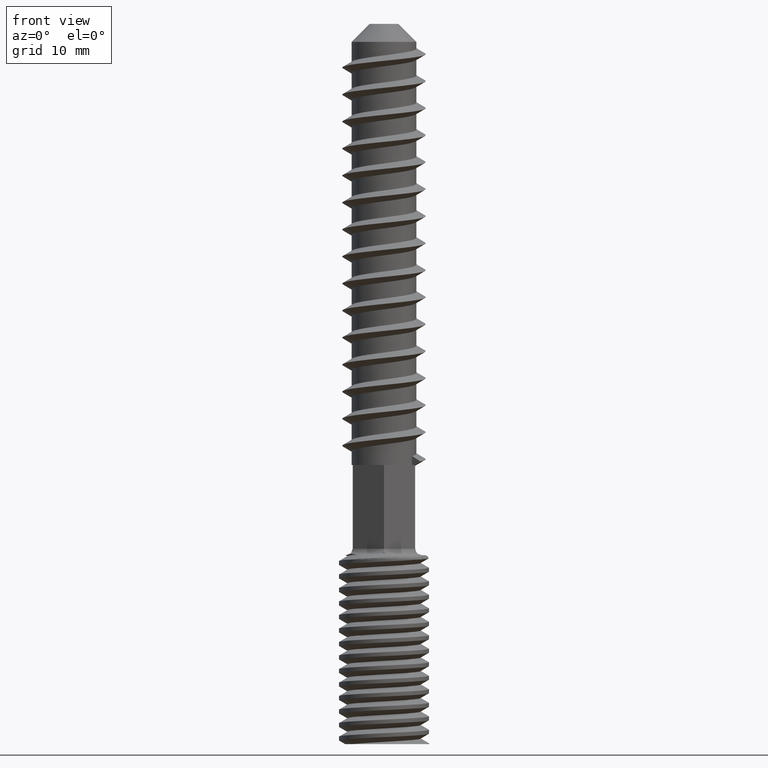
[diagram: clean part render]
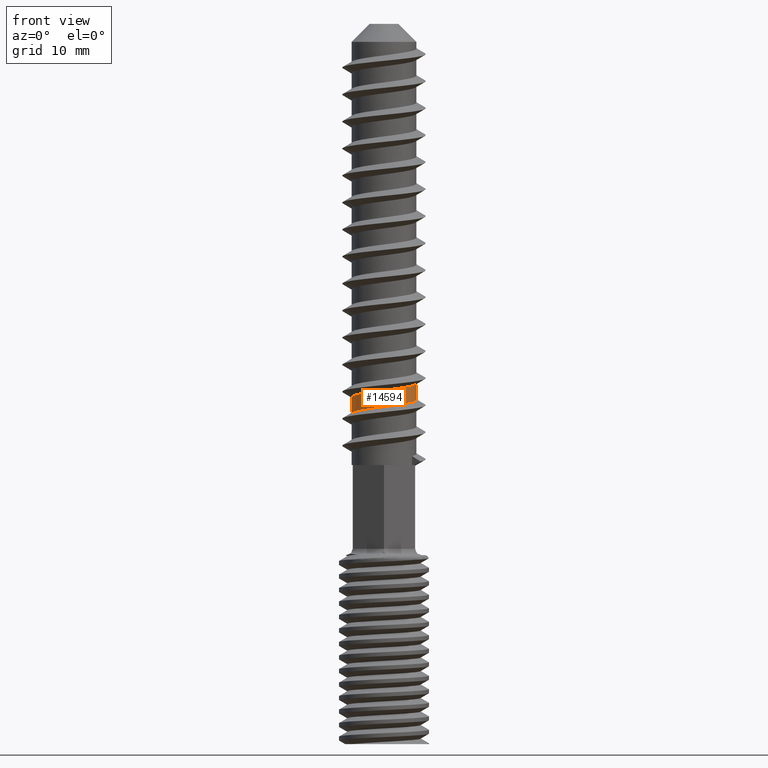
[diagram: same view with one face highlighted and labeled with its STEP entity id]
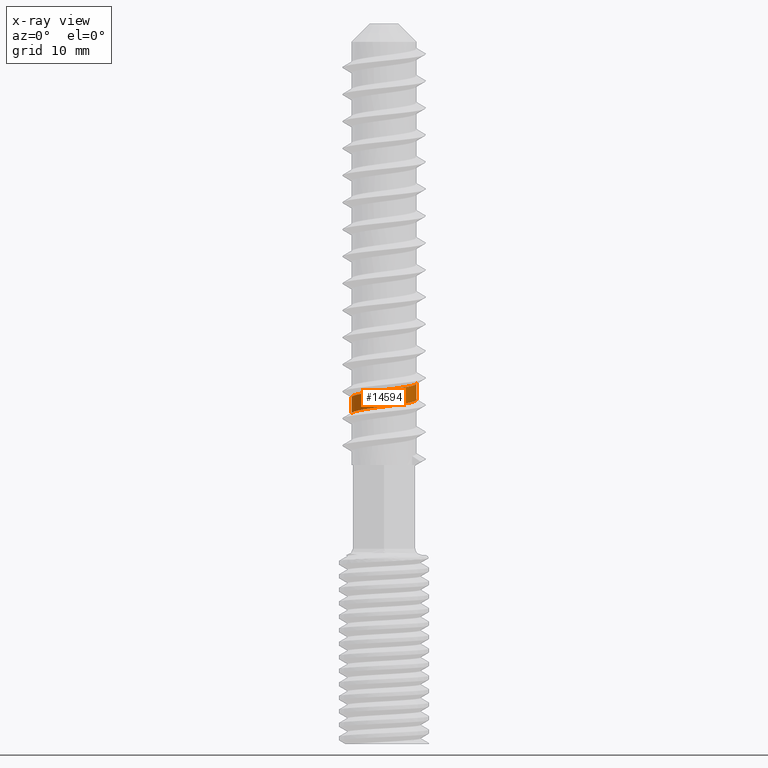
[diagram: x-ray of the same camera — body ghosted, the highlighted face saturated]
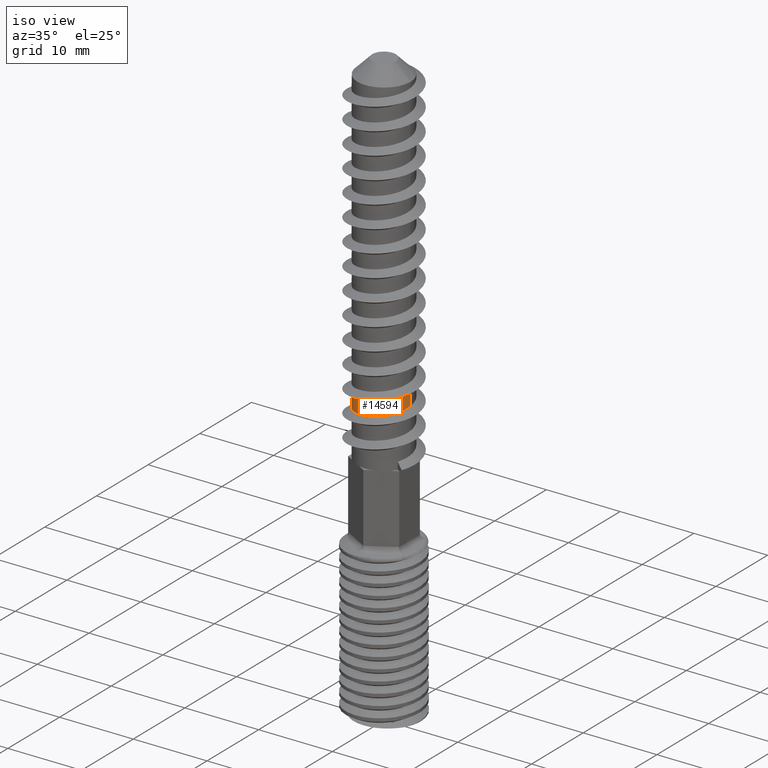
[diagram: same view with one face highlighted and labeled with its STEP entity id]
A machine part, front view. The second image highlights one B-rep face of the part: STEP entity #14594.
The next image is the same camera in x-ray: the body ghosted, the highlighted face saturated — about 0% of this face is hidden behind the body in this view.
A second angle (iso view) of the same face is appended — the face is thin or edge-on in the first view.
In plain terms, the highlighted cylindrical surface (edge-blend (fillet) strip) has radius 3.6 mm, axis along (-0, -0, -1).
Its self-contained STEP definition (entity closure, byte-faithful):
#382 = B_SPLINE_CURVE_WITH_KNOTS ( 'NONE', 3,
 ( #5175, #8233, #2029, #16000, #6734, #17558, #8303, #19134, #9863, #528, #11423, #2100, #12974, #3684, #14523, #5244, #16055, #6794, #17625, #8372, #19201, #9923, #598, #11489, #2167, #13036, #3749, #14592, #5309, #16123, #6857, #17690, #8435, #19262, #9981, #659, #11552, #2227, #13096, #3810, #14654, #5366, #16176, #6921, #17742, #8490, #19318, #10047, #720, #11607, #2296, #13156, #3870, #14707, #5427, #16242, #6978, #17810, #8549, #19379, #10105, #783, #11670, #2358, #13221, #3934, #14764, #5487, #16306, #7043, #17866, #8612, #19435, #10163, #843, #11728, #2420, #13282, #3998, #14826, #5541, #16370, #7101, #17930, #8668, #19502, #10227, #900, #11787, #2481, #13337, #4057, #14893, #5600, #16426, #7169, #17995, #8737, #19560, #10294, #968, #11847, #2541, #13398, #4119, #14952, #5670, #16495, #7232, #18063, #8797, #19625, #10352, #1048, #11911, #2603, #13466, #4187, #15017, #5735, #16564 ),
 .UNSPECIFIED., .F., .F.,
 ( 4, 1, 1, 2, 2, 2, 2, 2, 1, 1, 2, 2, 2, 2, 1, 2, 2, 2, 2, 2, 2, 2, 2, 1, 2, 2, 2, 2, 2, 2, 2, 2, 2, 1, 2, 2, 2, 2, 1, 2, 2, 2, 2, 1, 2, 2, 2, 2, 2, 1, 1, 1, 1, 1, 1, 2, 2, 2, 2, 2, 2, 2, 1, 1, 2, 2, 2, 2, 4 ),
 ( 0.8026344843850088400, 0.8031463726507385200, 0.8034023167836034100, 0.8035302888500358600, 0.8036582609164681900, 0.8046820374479276600, 0.8057058139793871200, 0.8058337860458194600, 0.8059617581122519000, 0.8062177022451168000, 0.8067295905108464700, 0.8077533670423059400, 0.8080093111751707200, 0.8082652553080356100, 0.8087771435737652900, 0.8098009201052246400, 0.8100568642380895400, 0.8103128083709543200, 0.8108246966366841100, 0.8118484731681434600, 0.8123603614338731300, 0.8124883335003055800, 0.8125523195335218100, 0.8126163055667380300, 0.8128722496996028100, 0.8149198027625215200, 0.8159435792939808700, 0.8164554675597105500, 0.8169673558254402200, 0.8179911323568995800, 0.8182470764897643600, 0.8183110625229805800, 0.8183750485561968000, 0.8185030206226292500, 0.8190149088883590400, 0.8200386854198185000, 0.8202946295526832900, 0.8204226016191157300, 0.8205505736855481800, 0.8210624619512779700, 0.8220862384827374300, 0.8222142105491698800, 0.8222781965823861000, 0.8223421826156023200, 0.8225981267484672200, 0.8231100150141970100, 0.8241337915456564700, 0.8241977775788726900, 0.8242297705954808600, 0.8242617636120889200, 0.8243897356785213600, 0.8246456798113862600, 0.8251575680771160400, 0.8256694563428458300, 0.8259254004757107200, 0.8260533725421431700, 0.8261813446085756200, 0.8272051211400351900, 0.8277170094057649800, 0.8282288976714947700, 0.8292526742029543400, 0.8313002272658734900, 0.8315561713987383900, 0.8316841434651708300, 0.8317481294983870600, 0.8318121155316032800, 0.8323240037973331800, 0.8333477803287927500, 0.8353953333917121200 ),
 .UNSPECIFIED. ) ;
#448 = LINE ( 'NONE', #18184, #3114 ) ;
#528 = CARTESIAN_POINT ( 'NONE',  ( 3.499603368803718300, -0.8524153134714673700, -28.57735068581813600 ) ) ;
#598 = CARTESIAN_POINT ( 'NONE',  ( 3.104296912187522600, -1.823244607232189700, -28.71534145109197700 ) ) ;
#659 = CARTESIAN_POINT ( 'NONE',  ( 2.182156425776128100, -2.863726219143246000, -28.90185509261878500 ) ) ;
#720 = CARTESIAN_POINT ( 'NONE',  ( 0.9502019767966741700, -3.473454768553302600, -29.08531111308207400 ) ) ;
#783 = CARTESIAN_POINT ( 'NONE',  ( 0.05785432278852837400, -3.600008127798117300, -29.20476726389328400 ) ) ;
#843 = CARTESIAN_POINT ( 'NONE',  ( -1.063183334816779000, -3.439478947554103400, -29.35546407278595300 ) ) ;
#900 = CARTESIAN_POINT ( 'NONE',  ( -1.726047943929140300, -3.159235952520494700, -29.45214326116160900 ) ) ;
#968 = CARTESIAN_POINT ( 'NONE',  ( -2.563835235230648800, -2.527904608696054400, -29.58989120463067100 ) ) ;
#1033 = EDGE_LOOP ( 'NONE', ( #17041, #3492, #4898, #15368 ) ) ;
#1048 = CARTESIAN_POINT ( 'NONE',  ( -3.387557269608546300, -1.218403640706133600, -29.79800657659464100 ) ) ;
#1436 = VECTOR ( 'NONE', #8322, 1000.000000000000000 ) ;
#1517 = CARTESIAN_POINT ( 'NONE',  ( 1.431617662130559300E-014, -3.600000000000000100, -31.00000000000000400 ) ) ;
#2029 = CARTESIAN_POINT ( 'NONE',  ( 3.597799326312862300, -0.1483315591605705000, -28.48246520065940500 ) ) ;
#2098 = CARTESIAN_POINT ( 'NONE',  ( -3.599999999999999600, -1.450377088799350000E-014, -31.75000000000000000 ) ) ;
#2100 = CARTESIAN_POINT ( 'NONE',  ( 3.439562585678086500, -1.062807845779430500, -28.60574041782821600 ) ) ;
#2167 = CARTESIAN_POINT ( 'NONE',  ( 2.963400812765419400, -2.050104272541834100, -28.75135593845909200 ) ) ;
#2227 = CARTESIAN_POINT ( 'NONE',  ( 2.119124254329228100, -2.910236738719050200, -28.91194452768561600 ) ) ;
#2296 = CARTESIAN_POINT ( 'NONE',  ( 0.7005327492072471700, -3.531918076850297300, -29.11977500736256300 ) ) ;
#2358 = CARTESIAN_POINT ( 'NONE',  ( -0.2339341363589267100, -3.594286770869651100, -29.24266063319139900 ) ) ;
#2420 = CARTESIAN_POINT ( 'NONE',  ( -1.099165802894580300, -3.428117384573772700, -29.36055091611340700 ) ) ;
#2481 = CARTESIAN_POINT ( 'NONE',  ( -1.748432160868147700, -3.146945258269315400, -29.45546211274376700 ) ) ;
#2541 = CARTESIAN_POINT ( 'NONE',  ( -2.696002806468821500, -2.386599090614423900, -29.61576789156321300 ) ) ;
#2603 = CARTESIAN_POINT ( 'NONE',  ( -3.427457732683388600, -1.102671899627483800, -29.81389989772734600 ) ) ;
#3097 = CARTESIAN_POINT ( 'NONE',  ( -2.116026908252891700, -2.912461179749819000, -31.30000000000000800 ) ) ;
#3114 = VECTOR ( 'NONE', #7295, 1000.000000000000000 ) ;
#3492 = ORIENTED_EDGE ( 'NONE', *, *, #8361, .T. ) ;
#3684 = CARTESIAN_POINT ( 'NONE',  ( 3.426352521880216900, -1.104709303436167900, -28.61139477604820800 ) ) ;
#3749 = CARTESIAN_POINT ( 'NONE',  ( 2.763068725533924100, -2.307884623371925200, -28.79522352652460200 ) ) ;
#3810 = CARTESIAN_POINT ( 'NONE',  ( 2.101540167136300300, -2.922933954735233100, -28.91472979373793000 ) ) ;
#3870 = CARTESIAN_POINT ( 'NONE',  ( 0.3762434876960307200, -3.581171511061270100, -29.16354546696121400 ) ) ;
#3934 = CARTESIAN_POINT ( 'NONE',  ( -0.4081434567026637800, -3.576907928569279100, -29.26573666582003200 ) ) ;
#3998 = CARTESIAN_POINT ( 'NONE',  ( -1.180973587660163900, -3.401237012635837800, -29.37216015822981100 ) ) ;
#4057 = CARTESIAN_POINT ( 'NONE',  ( -1.878039757384374300, -3.072284225513385100, -29.47490857174041100 ) ) ;
#4119 = CARTESIAN_POINT ( 'NONE',  ( -2.907131404975572800, -2.130929731545153000, -29.66035229069968100 ) ) ;
#4187 = CARTESIAN_POINT ( 'NONE',  ( -3.506542597973684400, -0.8233595140269474000, -29.85184240598585600 ) ) ;
#4424 = EDGE_CURVE ( 'NONE', #18990, #11507, #16007, .T. ) ;
#4665 = CARTESIAN_POINT ( 'NONE',  ( -3.423803458662548300, -1.112461179749824300, -31.60000000000000100 ) ) ;
#4898 = ORIENTED_EDGE ( 'NONE', *, *, #15310, .T. ) ;
#5129 = CARTESIAN_POINT ( 'NONE',  ( -3.600000000000000100, 0.0000000000000000000, 11.50000000000000000 ) ) ;
#5175 = CARTESIAN_POINT ( 'NONE',  ( 3.599999999991619700, -5.499081908783214500E-006, -28.46247773371950300 ) ) ;
#5244 = CARTESIAN_POINT ( 'NONE',  ( 3.374035929514982000, -1.258175218590018400, -28.63233672506407900 ) ) ;
#5309 = CARTESIAN_POINT ( 'NONE',  ( 2.705170639503085500, -2.375485640451452200, -28.80716884429863000 ) ) ;
#5366 = CARTESIAN_POINT ( 'NONE',  ( 2.080009913055682200, -2.938344006831466800, -28.91813818031628000 ) ) ;
#5427 = CARTESIAN_POINT ( 'NONE',  ( 0.2591269159394588000, -3.590697122369972000, -29.17889072347249900 ) ) ;
#5487 = CARTESIAN_POINT ( 'NONE',  ( -0.4590298077255463000, -3.570630605043486000, -29.27252408247608500 ) ) ;
#5541 = CARTESIAN_POINT ( 'NONE',  ( -1.355419241066578000, -3.336201718672184000, -29.39723341237673500 ) ) ;
#5600 = CARTESIAN_POINT ( 'NONE',  ( -2.120674299574839300, -2.910103813916677100, -29.51290025157700500 ) ) ;
#5670 = CARTESIAN_POINT ( 'NONE',  ( -3.221767269760222000, -1.631536694001517700, -29.73942952592906900 ) ) ;
#5735 = CARTESIAN_POINT ( 'NONE',  ( -3.599999934930650200, -0.2407074689113214400, -29.92997949403884700 ) ) ;
#6077 = LINE ( 'NONE', #5129, #1436 ) ;
#6157 = CARTESIAN_POINT ( 'NONE',  ( 3.599999999999999600, 1.411478086417758300E-014, -30.25000000000000000 ) ) ;
#6168 = DIRECTION ( 'NONE',  ( -0.0000000000000000000, -0.0000000000000000000, -1.000000000000000000 ) ) ;
#6219 = CARTESIAN_POINT ( 'NONE',  ( -3.599999999999999600, -1.450377088799350000E-014, -31.75000000000000000 ) ) ;
#6734 = CARTESIAN_POINT ( 'NONE',  ( 3.587813890238727800, -0.2963300719003270100, -28.50239240513613500 ) ) ;
#6794 = CARTESIAN_POINT ( 'NONE',  ( 3.270135857140732400, -1.510164718515650400, -28.66795251458392400 ) ) ;
#6857 = CARTESIAN_POINT ( 'NONE',  ( 2.620238511735834700, -2.469547438087806000, -28.82415771882629200 ) ) ;
#6921 = CARTESIAN_POINT ( 'NONE',  ( 1.934438755900280900, -3.039297417693041800, -28.94113797133819700 ) ) ;
#6978 = CARTESIAN_POINT ( 'NONE',  ( 0.2354672102766313700, -3.592293006263918000, -29.18194774529994400 ) ) ;
#7043 = CARTESIAN_POINT ( 'NONE',  ( -0.5337681994408001200, -3.560563691054366800, -29.28253496959364500 ) ) ;
#7101 = CARTESIAN_POINT ( 'NONE',  ( -1.601748615851091000, -3.226633031679686100, -29.43343671881957800 ) ) ;
#7169 = CARTESIAN_POINT ( 'NONE',  ( -2.236357616794675300, -2.821155356382478300, -29.53191966551969100 ) ) ;
#7232 = CARTESIAN_POINT ( 'NONE',  ( -3.361323266808526400, -1.289111024449442800, -29.78818546201445400 ) ) ;
#7295 = DIRECTION ( 'NONE',  ( -0.0000000000000000000, -0.0000000000000000000, -1.000000000000000000 ) ) ;
#7911 = CARTESIAN_POINT ( 'NONE',  ( 3.599999999991619700, -5.499081908783214500E-006, -28.46247773371950300 ) ) ;
#8233 = CARTESIAN_POINT ( 'NONE',  ( 3.599999999786187100, -0.05933263499303431700, -28.47049934367857200 ) ) ;
#8303 = CARTESIAN_POINT ( 'NONE',  ( 3.583643749756793500, -0.3432056037295228600, -28.50871205686552300 ) ) ;
#8322 = DIRECTION ( 'NONE',  ( -0.0000000000000000000, -0.0000000000000000000, -1.000000000000000000 ) ) ;
#8361 = EDGE_CURVE ( 'NONE', #18718, #16517, #382, .T. ) ;
#8372 = CARTESIAN_POINT ( 'NONE',  ( 3.158285095356843100, -1.727985046027128900, -28.70057312268825500 ) ) ;
#8435 = CARTESIAN_POINT ( 'NONE',  ( 2.442903983195433300, -2.647218044892736700, -28.85756022117105600 ) ) ;
#8490 = CARTESIAN_POINT ( 'NONE',  ( 1.404521491054081700, -3.317350568474671100, -29.02082299888066400 ) ) ;
#8549 = CARTESIAN_POINT ( 'NONE',  ( 0.2254860036734251900, -3.592938807622196400, -29.18323056443146200 ) ) ;
#8612 = CARTESIAN_POINT ( 'NONE',  ( -0.7567866628147355000, -3.521259639012599400, -29.31279700387061000 ) ) ;
#8668 = CARTESIAN_POINT ( 'NONE',  ( -1.719476451571881400, -3.162816524217499500, -29.45116806687999400 ) ) ;
#8737 = CARTESIAN_POINT ( 'NONE',  ( -2.272072352811539200, -2.792459575712676200, -29.53789320093942500 ) ) ;
#8797 = CARTESIAN_POINT ( 'NONE',  ( -3.378761303822233100, -1.242600362505896800, -29.79466807359646900 ) ) ;
#8992 = CYLINDRICAL_SURFACE ( 'NONE', #10563, 3.600000000000000100 ) ;
#9276 = CARTESIAN_POINT ( 'NONE',  ( 3.062342910067352700, -2.224922359499609000, -30.55000000000000100 ) ) ;
#9335 = EDGE_CURVE ( 'NONE', #18718, #18990, #448, .T. ) ;
#9863 = CARTESIAN_POINT ( 'NONE',  ( 3.547782748438376400, -0.6221520517253200700, -28.54630161031008500 ) ) ;
#9923 = CARTESIAN_POINT ( 'NONE',  ( 3.120617071646587100, -1.795104356944878400, -28.71094746182042500 ) ) ;
#9981 = CARTESIAN_POINT ( 'NONE',  ( 2.224876355103325500, -2.830728011535024600, -28.89485987284879800 ) ) ;
#10047 = CARTESIAN_POINT ( 'NONE',  ( 1.033939231791690700, -3.449298615845136000, -29.07359509677411000 ) ) ;
#10105 = CARTESIAN_POINT ( 'NONE',  ( 0.1308019212178923000, -3.598244209750809400, -29.19537158906742400 ) ) ;
#10163 = CARTESIAN_POINT ( 'NONE',  ( -1.044984851387593000, -3.445048182595751300, -29.35289946119253600 ) ) ;
#10227 = CARTESIAN_POINT ( 'NONE',  ( -1.724956643599369500, -3.159830067223949900, -29.45198179114031200 ) ) ;
#10294 = CARTESIAN_POINT ( 'NONE',  ( -2.436197363143314900, -2.653140347610988000, -29.56611498076702200 ) ) ;
#10352 = CARTESIAN_POINT ( 'NONE',  ( -3.384544933090094500, -1.226730092354956200, -29.79685923373131500 ) ) ;
#10563 = AXIS2_PLACEMENT_3D ( 'NONE', #15438, #6168, #16992 ) ;
#10843 = CARTESIAN_POINT ( 'NONE',  ( 1.169710906438477000, -3.599999999999995200, -30.85000000000000100 ) ) ;
#11423 = CARTESIAN_POINT ( 'NONE',  ( 3.471883009350341400, -0.9569281224741015300, -28.59145986642840900 ) ) ;
#11489 = CARTESIAN_POINT ( 'NONE',  ( 3.058590138771553500, -1.899617653708872300, -28.72735271387363600 ) ) ;
#11507 = VERTEX_POINT ( 'NONE', #2098 ) ;
#11552 = CARTESIAN_POINT ( 'NONE',  ( 2.129594782135364000, -2.902584533084200400, -28.91027640166076300 ) ) ;
#11607 = CARTESIAN_POINT ( 'NONE',  ( 0.7790468254618031500, -3.515801170378081200, -29.10902592715386900 ) ) ;
#11670 = CARTESIAN_POINT ( 'NONE',  ( -0.1172193339983294700, -3.599983638747305600, -29.22742044014024300 ) ) ;
#11728 = CARTESIAN_POINT ( 'NONE',  ( -1.090860306167078300, -3.430760462485550100, -29.35937572980134600 ) ) ;
#11787 = CARTESIAN_POINT ( 'NONE',  ( -1.732447239607146900, -3.155731273479677400, -29.45309148516049200 ) ) ;
#11847 = CARTESIAN_POINT ( 'NONE',  ( -2.607442535283946800, -2.483048484625578500, -29.59823670519899300 ) ) ;
#11911 = CARTESIAN_POINT ( 'NONE',  ( -3.409334376988326200, -1.157474425618263900, -29.80639584875826000 ) ) ;
#12082 = CARTESIAN_POINT ( 'NONE',  ( 3.599999999999999600, 1.411478086417758300E-014, -30.25000000000000000 ) ) ;
#12392 = CARTESIAN_POINT ( 'NONE',  ( -1.169710906438448300, -3.600000000000004500, -31.15000000000000600 ) ) ;
#12974 = CARTESIAN_POINT ( 'NONE',  ( 3.436370914733838200, -1.073139872367375500, -28.60713150670964600 ) ) ;
#13036 = CARTESIAN_POINT ( 'NONE',  ( 2.857223125551734600, -2.193253172786101800, -28.77530126011106000 ) ) ;
#13096 = CARTESIAN_POINT ( 'NONE',  ( 2.103485083573916700, -2.921539298614884900, -28.91442251304762600 ) ) ;
#13156 = CARTESIAN_POINT ( 'NONE',  ( 0.4877091736381516900, -3.569720647210962400, -29.14869726750703500 ) ) ;
#13221 = CARTESIAN_POINT ( 'NONE',  ( -0.3791373211689254600, -3.580098644228887100, -29.26188346894685600 ) ) ;
#13282 = CARTESIAN_POINT ( 'NONE',  ( -1.122793998600486700, -3.420451417777562200, -29.36390018045894800 ) ) ;
#13337 = CARTESIAN_POINT ( 'NONE',  ( -1.789818862493978800, -3.123786016873349800, -29.46162662307931500 ) ) ;
#13398 = CARTESIAN_POINT ( 'NONE',  ( -2.737185133203937000, -2.340061148391624300, -29.62411578390411600 ) ) ;
#13466 = CARTESIAN_POINT ( 'NONE',  ( -3.477984645660539900, -0.9364988600027633900, -29.83655279910565000 ) ) ;
#13595 = FACE_OUTER_BOUND ( 'NONE', #1033, .T. ) ;
#13949 = CARTESIAN_POINT ( 'NONE',  ( -3.062342910067334900, -2.224922359499633900, -31.45000000000000600 ) ) ;
#14523 = CARTESIAN_POINT ( 'NONE',  ( 3.411099776631231000, -1.151639566669404800, -28.61775344802278200 ) ) ;
#14592 = CARTESIAN_POINT ( 'NONE',  ( 2.743954419772096200, -2.330578116913000700, -28.79920637139249000 ) ) ;
#14594 = ADVANCED_FACE ( 'NONE', ( #13595 ), #8992, .T. ) ;
#14654 = CARTESIAN_POINT ( 'NONE',  ( 2.095464554353368300, -2.927292653507684000, -28.91569159319174900 ) ) ;
#14707 = CARTESIAN_POINT ( 'NONE',  ( 0.2769853705465546400, -3.589383775678994600, -29.17656408214295300 ) ) ;
#14764 = CARTESIAN_POINT ( 'NONE',  ( -0.4515880464316418000, -3.571593634359568900, -29.27152940571288700 ) ) ;
#14826 = CARTESIAN_POINT ( 'NONE',  ( -1.234721171002931100, -3.381909880017256200, -29.37985422053562700 ) ) ;
#14893 = CARTESIAN_POINT ( 'NONE',  ( -2.001329566342990900, -2.994145099944265400, -29.49389576064058700 ) ) ;
#14952 = CARTESIAN_POINT ( 'NONE',  ( -2.998405271450831100, -1.997495909690123700, -29.68200232624547800 ) ) ;
#15017 = CARTESIAN_POINT ( 'NONE',  ( -3.575789521633030000, -0.4783061989461595600, -29.89827424451045000 ) ) ;
#15086 = CARTESIAN_POINT ( 'NONE',  ( 3.600000000000001400, -0.5701839851683163700, -30.32688142232027000 ) ) ;
#15310 = EDGE_CURVE ( 'NONE', #16517, #11507, #6077, .T. ) ;
#15368 = ORIENTED_EDGE ( 'NONE', *, *, #4424, .F. ) ;
#15438 = CARTESIAN_POINT ( 'NONE',  ( 0.0000000000000000000, 0.0000000000000000000, 11.50000000000000000 ) ) ;
#15493 = CARTESIAN_POINT ( 'NONE',  ( -3.599999999999997000, -0.5701839851683450100, -31.67311857767973000 ) ) ;
#16000 = CARTESIAN_POINT ( 'NONE',  ( 3.591385485699454700, -0.2519733150156479000, -28.49641569466404400 ) ) ;
#16007 =( BOUNDED_CURVE ( )  B_SPLINE_CURVE ( 2, ( #6157, #15086, #18549, #9276, #20111, #10843, #1517, #12392, #3097, #13949, #4665, #15493, #6219 ),
 .UNSPECIFIED., .F., .F. ) 
 B_SPLINE_CURVE_WITH_KNOTS ( ( 3, 2, 2, 2, 2, 2, 3 ),
 ( 0.8281250000000000000, 0.8312500000000000400, 0.8375000000000000200, 0.8437500000000000000, 0.8499999999999999800, 0.8562499999999999600, 0.8593750000000000000 ),
 .UNSPECIFIED. ) 
 CURVE ( )  GEOMETRIC_REPRESENTATION_ITEM ( )  RATIONAL_B_SPLINE_CURVE ( ( 0.9755282581475768200, 0.9755282581475768200, 1.000000000000000000, 0.9510565162951535300, 1.000000000000000000, 0.9510565162951535300, 1.000000000000000000, 0.9510565162951535300, 1.000000000000000000, 0.9510565162951535300, 1.000000000000000000, 0.9755282581475768200, 0.9755282581475768200 ) ) 
 REPRESENTATION_ITEM ( '' )  );
#16055 = CARTESIAN_POINT ( 'NONE',  ( 3.340084808358902500, -1.344406922502197700, -28.64440189241468500 ) ) ;
#16123 = CARTESIAN_POINT ( 'NONE',  ( 2.686495581613540300, -2.396626815298608500, -28.81095407753890600 ) ) ;
#16176 = CARTESIAN_POINT ( 'NONE',  ( 2.063219559784589900, -2.950157265864584900, -28.92079520989073400 ) ) ;
#16242 = CARTESIAN_POINT ( 'NONE',  ( 0.2393062446809066100, -3.592039574907861100, -29.18145267300092600 ) ) ;
#16306 = CARTESIAN_POINT ( 'NONE',  ( -0.4799476855253141900, -3.567879132091311700, -29.27532267915224700 ) ) ;
#16370 = CARTESIAN_POINT ( 'NONE',  ( -1.424823284818946200, -3.306670295692417700, -29.40737079668030800 ) ) ;
#16426 = CARTESIAN_POINT ( 'NONE',  ( -2.201996282116902600, -2.848280711814446900, -29.52621247880152900 ) ) ;
#16495 = CARTESIAN_POINT ( 'NONE',  ( -3.304676762083313100, -1.434711500007755900, -29.76768378311308900 ) ) ;
#16517 = VERTEX_POINT ( 'NONE', #16848 ) ;
#16564 = CARTESIAN_POINT ( 'NONE',  ( -3.599999999999868200, -9.731735256373457600E-007, -29.96243543407923900 ) ) ;
#16848 = CARTESIAN_POINT ( 'NONE',  ( -3.599999999999868200, -9.731735256373457600E-007, -29.96243543407923900 ) ) ;
#16992 = DIRECTION ( 'NONE',  ( -1.000000000000000000, 0.0000000000000000000, 0.0000000000000000000 ) ) ;
#17041 = ORIENTED_EDGE ( 'NONE', *, *, #9335, .F. ) ;
#17558 = CARTESIAN_POINT ( 'NONE',  ( 3.585250162786303800, -0.3258853981742138000, -28.50637641819022500 ) ) ;
#17625 = CARTESIAN_POINT ( 'NONE',  ( 3.220796506368258400, -1.611714264412557500, -28.68287997932068500 ) ) ;
#17690 = CARTESIAN_POINT ( 'NONE',  ( 2.575864543546906700, -2.515712158689333000, -28.83270197381478500 ) ) ;
#17742 = CARTESIAN_POINT ( 'NONE',  ( 1.764003679566181100, -3.149328923825673400, -28.96784014870628700 ) ) ;
#17810 = CARTESIAN_POINT ( 'NONE',  ( 0.2280395403261477600, -3.592772163388035200, -29.18290325468460700 ) ) ;
#17866 = CARTESIAN_POINT ( 'NONE',  ( -0.5951929037019445500, -3.550879367420301400, -29.29082625378997000 ) ) ;
#17930 = CARTESIAN_POINT ( 'NONE',  ( -1.678194560463454500, -3.185218542085267700, -29.44501902588382000 ) ) ;
#17995 = CARTESIAN_POINT ( 'NONE',  ( -2.259154381468004800, -2.802933180747451600, -29.53572488921605600 ) ) ;
#18063 = CARTESIAN_POINT ( 'NONE',  ( -3.369965138023858700, -1.266381358086605700, -29.79136731765570900 ) ) ;
#18184 = CARTESIAN_POINT ( 'NONE',  ( 3.600000000000000100, 4.408728476930471200E-016, 11.50000000000000000 ) ) ;
#18549 = CARTESIAN_POINT ( 'NONE',  ( 3.423803458662557200, -1.112461179749797200, -30.40000000000000600 ) ) ;
#18718 = VERTEX_POINT ( 'NONE', #7911 ) ;
#18990 = VERTEX_POINT ( 'NONE', #12082 ) ;
#19134 = CARTESIAN_POINT ( 'NONE',  ( 3.568238795683851300, -0.4963859783706308100, -28.52936171541228200 ) ) ;
#19201 = CARTESIAN_POINT ( 'NONE',  ( 3.145739225595689100, -1.750707081359769400, -28.70406344198407900 ) ) ;
#19262 = CARTESIAN_POINT ( 'NONE',  ( 2.354503680876364400, -2.725563409625097100, -28.87309969592957200 ) ) ;
#19318 = CARTESIAN_POINT ( 'NONE',  ( 1.267345075516276300, -3.373514719813934800, -29.04063887962581300 ) ) ;
#19379 = CARTESIAN_POINT ( 'NONE',  ( 0.2036420331015615900, -3.594265262196876700, -29.18602985000454800 ) ) ;
#19435 = CARTESIAN_POINT ( 'NONE',  ( -0.8835339695294509600, -3.493105811019884000, -29.33020639460365300 ) ) ;
#19502 = CARTESIAN_POINT ( 'NONE',  ( -1.721756937838277300, -3.161575390707330500, -29.45150713855527200 ) ) ;
#19560 = CARTESIAN_POINT ( 'NONE',  ( -2.355403185873953500, -2.724196096020565300, -29.55194453531308000 ) ) ;
#19625 = CARTESIAN_POINT ( 'NONE',  ( -3.382266126886747300, -1.232999177010896100, -29.79599452421949800 ) ) ;
#20111 = CARTESIAN_POINT ( 'NONE',  ( 2.116026908252914800, -2.912461179749802100, -30.70000000000001000 ) ) ;